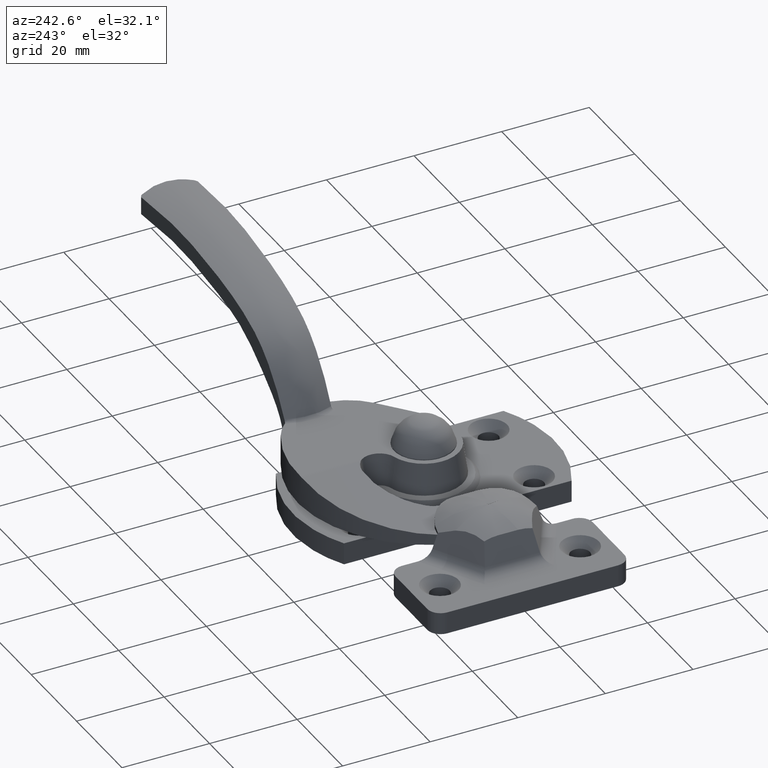
[diagram: clean part render]
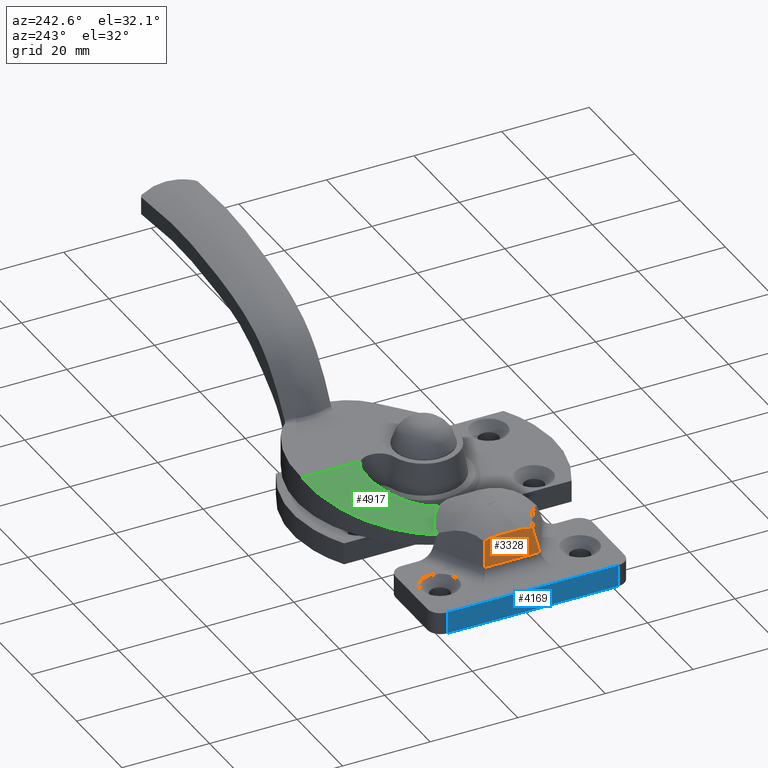
[diagram: same view with three faces highlighted in distinct colors, each labeled with its STEP entity id]
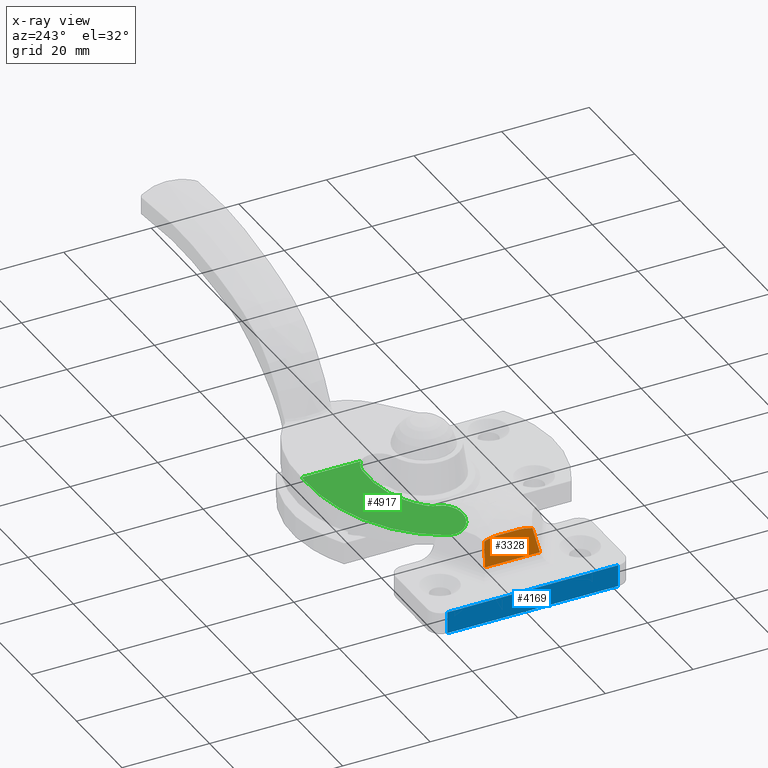
[diagram: x-ray of the same camera — body ghosted, the three highlighted faces saturated]
A machine part, auxiliary view with three faces highlighted in distinct colors.
The next image is the same camera in x-ray (body ghosted, the three faces saturated) — at least one of them is partly hidden behind the body in this view.
Their STEP definitions:

[orange] entity #3328 — the highlighted face is a freeform B-spline surface patch.
#2023=CARTESIAN_POINT('',(-39.037524790009002,-6.265808396831960,7.094884529306870));
#2024=VERTEX_POINT('',#2023);
#2030=CARTESIAN_POINT('',(-39.081545166433742,-6.288096753419390,6.973939542727700));
#2031=VERTEX_POINT('',#2030);
#2032=CARTESIAN_POINT('',(-39.037524790009002,-6.265808396831960,7.094884529306870));
#2033=CARTESIAN_POINT('',(-39.059694362927715,-6.275380818402100,7.033974130148897));
#2034=CARTESIAN_POINT('',(-39.081545166433763,-6.288096753419389,6.973939542727709));
#2042=(BOUNDED_CURVE()B_SPLINE_CURVE(2,(#2032,#2033,#2034),.UNSPECIFIED.,.F.,.U.)CURVE()GEOMETRIC_REPRESENTATION_ITEM()QUASI_UNIFORM_CURVE()RATIONAL_B_SPLINE_CURVE((1.0,0.999773321025581,1.0))REPRESENTATION_ITEM(''));
#2043=EDGE_CURVE('',#2024,#2031,#2042,.T.);
#2082=CARTESIAN_POINT('',(-39.081545166433742,6.288096753419479,6.973939542727700));
#2083=VERTEX_POINT('',#2082);
#2084=CARTESIAN_POINT('',(-39.081545166433742,-6.288096753419390,6.973939542727700));
#2085=CARTESIAN_POINT('',(-39.081545166433742,6.288096753419479,6.973939542727700));
#2086=QUASI_UNIFORM_CURVE('',1,(#2084,#2085),.UNSPECIFIED.,.F.,.U.);
#2087=EDGE_CURVE('',#2031,#2083,#2086,.T.);
#2127=CARTESIAN_POINT('',(-39.037524790009002,6.265808396832160,7.094884529306930));
#2128=VERTEX_POINT('',#2127);
#2157=CARTESIAN_POINT('',(-39.081545166433763,6.288096753419479,6.973939542727707));
#2158=CARTESIAN_POINT('',(-39.059694362927658,6.275380818402159,7.033974130149051));
#2159=CARTESIAN_POINT('',(-39.037524790009030,6.265808396832166,7.094884529306945));
#2167=(BOUNDED_CURVE()B_SPLINE_CURVE(2,(#2157,#2158,#2159),.UNSPECIFIED.,.F.,.U.)CURVE()GEOMETRIC_REPRESENTATION_ITEM()QUASI_UNIFORM_CURVE()RATIONAL_B_SPLINE_CURVE((1.0,0.999773321026450,1.0))REPRESENTATION_ITEM(''));
#2168=EDGE_CURVE('',#2083,#2128,#2167,.T.);
#2704=CARTESIAN_POINT('',(-37.107540000000000,-2.345069335652475,12.397474000000001));
#2705=VERTEX_POINT('',#2704);
#2759=CARTESIAN_POINT('',(-37.265312976113648,-5.500599312462621,11.963996323787040));
#2760=VERTEX_POINT('',#2759);
#2761=CARTESIAN_POINT('',(-37.107540000000000,-2.345069335652475,12.397474000000001));
#2762=CARTESIAN_POINT('',(-37.107540037944723,-2.886414302589203,12.397474032962270));
#2763=CARTESIAN_POINT('',(-37.121628918430282,-3.419495585367803,12.358765015915010));
#2764=CARTESIAN_POINT('',(-37.174892445436512,-4.470944443745632,12.212424682593531));
#2765=CARTESIAN_POINT('',(-37.214093807675262,-4.989296327308654,12.104719828275410));
#2766=CARTESIAN_POINT('',(-37.265312976113677,-5.500599312462636,11.963996323787130));
#2767=B_SPLINE_CURVE_WITH_KNOTS('',3,(#2761,#2762,#2763,#2764,#2765,#2766),.UNSPECIFIED.,.F.,.U.,(4,2,4),(0.0,0.500000000000000,1.0),.UNSPECIFIED.);
#2768=EDGE_CURVE('',#2705,#2760,#2767,.T.);
#3101=CARTESIAN_POINT('',(-37.265312976116547,5.500599312459170,11.963996323792500));
#3102=VERTEX_POINT('',#3101);
#3124=CARTESIAN_POINT('',(-37.107540000000000,2.345069335652495,12.397474000000001));
#3125=VERTEX_POINT('',#3124);
#3126=CARTESIAN_POINT('',(-37.265312976116547,5.500599312459170,11.963996323792500));
#3127=CARTESIAN_POINT('',(-37.213738677981979,4.985751192198648,12.105695539059351));
#3128=CARTESIAN_POINT('',(-37.174525019014460,4.465488414534591,12.213434178360989));
#3129=CARTESIAN_POINT('',(-37.121435612416370,3.413863424346906,12.359296119807240));
#3130=CARTESIAN_POINT('',(-37.107539976607299,2.882509923967650,12.397474064271551));
#3131=CARTESIAN_POINT('',(-37.107540000000000,2.345069335652495,12.397474000000001));
#3132=B_SPLINE_CURVE_WITH_KNOTS('',3,(#3126,#3127,#3128,#3129,#3130,#3131),.UNSPECIFIED.,.F.,.U.,(4,2,4),(0.0,0.500000000000000,1.0),.UNSPECIFIED.);
#3133=EDGE_CURVE('',#3102,#3125,#3132,.T.);
#3231=CARTESIAN_POINT('',(-37.107540000000000,2.345069335652495,12.397474000000001));
#3232=CARTESIAN_POINT('',(-37.107540000000000,-2.345069335652475,12.397474000000001));
#3233=QUASI_UNIFORM_CURVE('',1,(#3231,#3232),.UNSPECIFIED.,.F.,.U.);
#3234=EDGE_CURVE('',#3125,#2705,#3233,.T.);
#3305=CARTESIAN_POINT('',(-37.008938346057349,6.916277830823588,12.668379809566870));
#3306=CARTESIAN_POINT('',(-39.180146926270027,6.916277830823589,6.703033442219684));
#3307=CARTESIAN_POINT('',(-37.008938346057349,-6.916277943263433,12.668379809566870));
#3308=CARTESIAN_POINT('',(-39.180146926270027,-6.916277943263432,6.703033442219683));
#3309=B_SPLINE_SURFACE_WITH_KNOTS('',1,1,((#3305,#3307),(#3306,#3308)),.UNSPECIFIED.,.F.,.F.,.U.,(2,2),(2,2),(0.0,6.348189031622433),(0.0,13.832555774087020),.UNSPECIFIED.);
#3310=ORIENTED_EDGE('',*,*,#2043,.F.);
#3311=CARTESIAN_POINT('',(-37.265312976113648,-5.500599312462621,11.963996323787040));
#3312=CARTESIAN_POINT('',(-39.037524790009002,-6.265808396831960,7.094884529306870));
#3313=QUASI_UNIFORM_CURVE('',1,(#3311,#3312),.UNSPECIFIED.,.F.,.U.);
#3314=EDGE_CURVE('',#2760,#2024,#3313,.T.);
#3315=ORIENTED_EDGE('',*,*,#3314,.F.);
#3316=ORIENTED_EDGE('',*,*,#2768,.F.);
#3317=ORIENTED_EDGE('',*,*,#3234,.F.);
#3318=ORIENTED_EDGE('',*,*,#3133,.F.);
#3319=CARTESIAN_POINT('',(-39.037524790009002,6.265808396832160,7.094884529306930));
#3320=CARTESIAN_POINT('',(-37.265312976116547,5.500599312459170,11.963996323792500));
#3321=QUASI_UNIFORM_CURVE('',1,(#3319,#3320),.UNSPECIFIED.,.F.,.U.);
#3322=EDGE_CURVE('',#2128,#3102,#3321,.T.);
#3323=ORIENTED_EDGE('',*,*,#3322,.F.);
#3324=ORIENTED_EDGE('',*,*,#2168,.F.);
#3325=ORIENTED_EDGE('',*,*,#2087,.F.);
#3326=EDGE_LOOP('',(#3310,#3315,#3316,#3317,#3318,#3323,#3324,#3325));
#3327=FACE_OUTER_BOUND('',#3326,.T.);
#3328=ADVANCED_FACE('',(#3327),#3309,.T.);

[blue] entity #4169 — the highlighted face is a freeform B-spline surface patch.
#4103=CARTESIAN_POINT('',(-48.0,19.500000000000000,5.000000000000120));
#4104=VERTEX_POINT('',#4103);
#4119=CARTESIAN_POINT('',(-48.0,19.500000000000000,0.0));
#4120=VERTEX_POINT('',#4119);
#4134=CARTESIAN_POINT('',(-48.0,19.500000000000000,0.0));
#4135=CARTESIAN_POINT('',(-48.0,19.500000000000000,5.000000000000120));
#4136=QUASI_UNIFORM_CURVE('',1,(#4134,#4135),.UNSPECIFIED.,.F.,.U.);
#4137=EDGE_CURVE('',#4120,#4104,#4136,.T.);
#4142=CARTESIAN_POINT('',(-48.0,21.448049924410430,5.249749990309157));
#4143=CARTESIAN_POINT('',(-48.0,21.448049924410430,-0.249750124419486));
#4144=CARTESIAN_POINT('',(-48.0,-21.448050970471950,5.249749990309157));
#4145=CARTESIAN_POINT('',(-48.0,-21.448050970471950,-0.249750124419486));
#4146=B_SPLINE_SURFACE_WITH_KNOTS('',1,1,((#4142,#4144),(#4143,#4145)),.UNSPECIFIED.,.F.,.F.,.U.,(2,2),(2,2),(0.0,5.499500114728643),(0.0,42.896100894882380),.UNSPECIFIED.);
#4147=CARTESIAN_POINT('',(-48.0,-19.500000000000000,5.000000000000120));
#4148=VERTEX_POINT('',#4147);
#4149=CARTESIAN_POINT('',(-48.0,-19.500000000000000,5.000000000000120));
#4150=CARTESIAN_POINT('',(-48.0,19.500000000000000,5.000000000000120));
#4151=QUASI_UNIFORM_CURVE('',1,(#4149,#4150),.UNSPECIFIED.,.F.,.U.);
#4152=EDGE_CURVE('',#4148,#4104,#4151,.T.);
#4153=ORIENTED_EDGE('',*,*,#4152,.T.);
#4154=ORIENTED_EDGE('',*,*,#4137,.F.);
#4155=CARTESIAN_POINT('',(-48.0,-19.500000000000000,0.0));
#4156=VERTEX_POINT('',#4155);
#4157=CARTESIAN_POINT('',(-48.0,-19.500000000000000,0.0));
#4158=CARTESIAN_POINT('',(-48.0,19.500000000000000,0.0));
#4159=QUASI_UNIFORM_CURVE('',1,(#4157,#4158),.UNSPECIFIED.,.F.,.U.);
#4160=EDGE_CURVE('',#4156,#4120,#4159,.T.);
#4161=ORIENTED_EDGE('',*,*,#4160,.F.);
#4162=CARTESIAN_POINT('',(-48.0,-19.500000000000000,0.0));
#4163=CARTESIAN_POINT('',(-48.0,-19.500000000000000,5.000000000000120));
#4164=QUASI_UNIFORM_CURVE('',1,(#4162,#4163),.UNSPECIFIED.,.F.,.U.);
#4165=EDGE_CURVE('',#4156,#4148,#4164,.T.);
#4166=ORIENTED_EDGE('',*,*,#4165,.T.);
#4167=EDGE_LOOP('',(#4153,#4154,#4161,#4166));
#4168=FACE_OUTER_BOUND('',#4167,.T.);
#4169=ADVANCED_FACE('',(#4168),#4146,.T.);

[green] entity #4917 — the highlighted face is a freeform B-spline surface patch.
#4795=CARTESIAN_POINT('',(-0.260507681112827,28.024213761630850,13.153687523357700));
#4796=VERTEX_POINT('',#4795);
#4804=CARTESIAN_POINT('',(-0.260507681112817,14.524495701704719,13.153687523357700));
#4805=VERTEX_POINT('',#4804);
#4806=CARTESIAN_POINT('',(-0.260507681112827,28.024213761630850,13.153687523357700));
#4807=CARTESIAN_POINT('',(-0.260507681112817,14.524495701704719,13.153687523357700));
#4808=QUASI_UNIFORM_CURVE('',1,(#4806,#4807),.UNSPECIFIED.,.F.,.U.);
#4809=EDGE_CURVE('',#4796,#4805,#4808,.T.);
#4830=CARTESIAN_POINT('',(1.074949839527158,29.298709296145489,13.391102193693690));
#4831=CARTESIAN_POINT('',(-28.331853255573449,29.298709296145489,8.163226087898206));
#4832=CARTESIAN_POINT('',(1.074949839527151,1.234290436262806,13.391102193693690));
#4833=CARTESIAN_POINT('',(-28.331853255573449,1.234290436262814,8.163226087898206));
#4834=B_SPLINE_SURFACE_WITH_KNOTS('',1,1,((#4830,#4832),(#4831,#4833)),.UNSPECIFIED.,.F.,.F.,.U.,(2,2),(2,2),(0.0,29.867888389565909),(0.0,28.064418859882689),.UNSPECIFIED.);
#4835=CARTESIAN_POINT('',(-26.347541566087848,9.341727463239469,8.515992610473420));
#4836=VERTEX_POINT('',#4835);
#4837=CARTESIAN_POINT('',(-0.260507681112827,28.024213761630850,13.153687523357700));
#4838=CARTESIAN_POINT('',(-19.190622623257365,26.902641111939186,9.788333755865454));
#4839=CARTESIAN_POINT('',(-26.347541566087859,9.341727463239433,8.515992610473406));
#4847=(BOUNDED_CURVE()B_SPLINE_CURVE(2,(#4837,#4838,#4839),.UNSPECIFIED.,.F.,.U.)CURVE()GEOMETRIC_REPRESENTATION_ITEM()QUASI_UNIFORM_CURVE()RATIONAL_B_SPLINE_CURVE((1.0,0.846025552116756,1.0))REPRESENTATION_ITEM(''));
#4848=EDGE_CURVE('',#4796,#4836,#4847,.T.);
#4849=ORIENTED_EDGE('',*,*,#4848,.T.);
#4850=CARTESIAN_POINT('',(-18.086059211697400,6.132112296169830,9.984700584587220));
#4851=VERTEX_POINT('',#4850);
#4852=CARTESIAN_POINT('',(-18.086059211697400,6.132112296169830,9.984700584587220));
#4853=CARTESIAN_POINT('',(-18.662177701665602,3.228726402952936,9.882279519704078));
#4854=CARTESIAN_POINT('',(-21.556359482322769,2.608021980602633,9.367758314253933));
#4855=CARTESIAN_POINT('',(-24.450541262979932,1.987317558252331,8.853237108803789));
#4856=CARTESIAN_POINT('',(-26.166586656069018,4.399111572730097,8.548162372254629));
#4857=CARTESIAN_POINT('',(-27.882632049158108,6.810905587207865,8.243087635705468));
#4858=CARTESIAN_POINT('',(-26.347541566087820,9.341727463239469,8.515992610473507));
#4866=(BOUNDED_CURVE()B_SPLINE_CURVE(2,(#4852,#4853,#4854,#4855,#4856,#4857,#4858),.UNSPECIFIED.,.F.,.U.)B_SPLINE_CURVE_WITH_KNOTS((3,2,2,3),(0.0,0.333333333333333,0.666666666666667,1.0),.UNSPECIFIED.)CURVE()GEOMETRIC_REPRESENTATION_ITEM()RATIONAL_B_SPLINE_CURVE((1.0,0.835462490971351,1.0,0.835462490971351,1.0,0.835462490971351,1.0))REPRESENTATION_ITEM(''));
#4867=EDGE_CURVE('',#4851,#4836,#4866,.T.);
#4868=ORIENTED_EDGE('',*,*,#4867,.F.);
#4869=CARTESIAN_POINT('',(-17.076163127213551,8.429495878181800,10.164237666273220));
#4870=VERTEX_POINT('',#4869);
#4871=CARTESIAN_POINT('',(-18.086059211697400,6.132112296169830,9.984700584587220));
#4872=CARTESIAN_POINT('',(-18.044564138841221,6.341229363694119,9.992077486428316));
#4873=CARTESIAN_POINT('',(-17.991960538402271,6.545839693239396,10.001429237617421));
#4874=CARTESIAN_POINT('',(-17.865636860520141,6.946493381758099,10.023886780352020));
#4875=CARTESIAN_POINT('',(-17.791911980832261,7.142534792457252,10.036993425629859));
#4876=CARTESIAN_POINT('',(-17.623521609767849,7.526121991974263,10.066929491596870));
#4877=CARTESIAN_POINT('',(-17.528857528951221,7.713668353057330,10.083758661519830));
#4878=CARTESIAN_POINT('',(-17.370647733256391,7.988409994778596,10.111884847421130));
#4879=CARTESIAN_POINT('',(-17.315086737863499,8.079055639671880,10.121762357713189));
#4880=CARTESIAN_POINT('',(-17.199242138779940,8.256791868482749,10.142356953105830));
#4881=CARTESIAN_POINT('',(-17.138912486610788,8.343985441115908,10.153082224602599));
#4882=CARTESIAN_POINT('',(-17.076163127213551,8.429495878181800,10.164237666273220));
#4883=B_SPLINE_CURVE_WITH_KNOTS('',3,(#4871,#4872,#4873,#4874,#4875,#4876,#4877,#4878,#4879,#4880,#4881,#4882),.UNSPECIFIED.,.F.,.U.,(4,2,2,2,2,4),(0.0,0.249999999999999,0.499999999999999,0.749999999999998,0.874999999999999,1.0),.UNSPECIFIED.);
#4884=EDGE_CURVE('',#4851,#4870,#4883,.T.);
#4885=ORIENTED_EDGE('',*,*,#4884,.T.);
#4886=CARTESIAN_POINT('',(-2.863196534675405,15.543838575076050,12.690987282724381));
#4887=VERTEX_POINT('',#4886);
#4888=CARTESIAN_POINT('',(-2.863196534675405,15.543838575076050,12.690987282724381));
#4889=CARTESIAN_POINT('',(-11.793621976413393,15.628170107786737,11.103356093082112));
#4890=CARTESIAN_POINT('',(-17.076163127213551,8.429495878181800,10.164237666273220));
#4898=(BOUNDED_CURVE()B_SPLINE_CURVE(2,(#4888,#4889,#4890),.UNSPECIFIED.,.F.,.U.)CURVE()GEOMETRIC_REPRESENTATION_ITEM()QUASI_UNIFORM_CURVE()RATIONAL_B_SPLINE_CURVE((1.0,0.889902429095476,1.0))REPRESENTATION_ITEM(''));
#4899=EDGE_CURVE('',#4887,#4870,#4898,.T.);
#4900=ORIENTED_EDGE('',*,*,#4899,.F.);
#4901=CARTESIAN_POINT('',(-0.260507681112817,14.524495701704719,13.153687523357700));
#4902=CARTESIAN_POINT('',(-1.367645390686949,15.529715456314293,12.956863041655643));
#4903=CARTESIAN_POINT('',(-2.863196534675405,15.543838575076050,12.690987282724381));
#4911=(BOUNDED_CURVE()B_SPLINE_CURVE(2,(#4901,#4902,#4903),.UNSPECIFIED.,.F.,.U.)CURVE()GEOMETRIC_REPRESENTATION_ITEM()QUASI_UNIFORM_CURVE()RATIONAL_B_SPLINE_CURVE((1.0,0.934497786119031,1.0))REPRESENTATION_ITEM(''));
#4912=EDGE_CURVE('',#4805,#4887,#4911,.T.);
#4913=ORIENTED_EDGE('',*,*,#4912,.F.);
#4914=ORIENTED_EDGE('',*,*,#4809,.F.);
#4915=EDGE_LOOP('',(#4849,#4868,#4885,#4900,#4913,#4914));
#4916=FACE_OUTER_BOUND('',#4915,.T.);
#4917=ADVANCED_FACE('',(#4916),#4834,.T.);